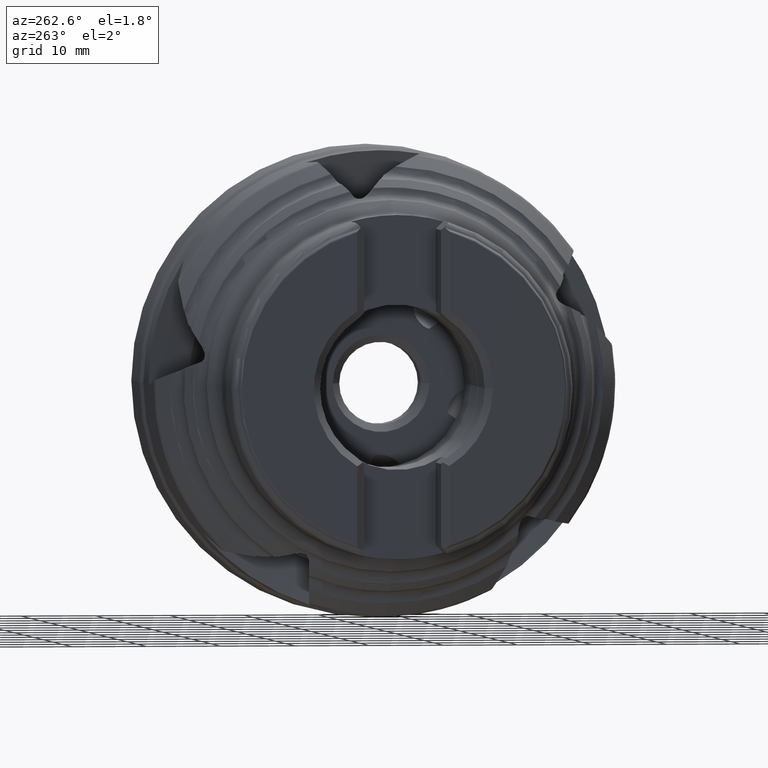
[diagram: clean part render]
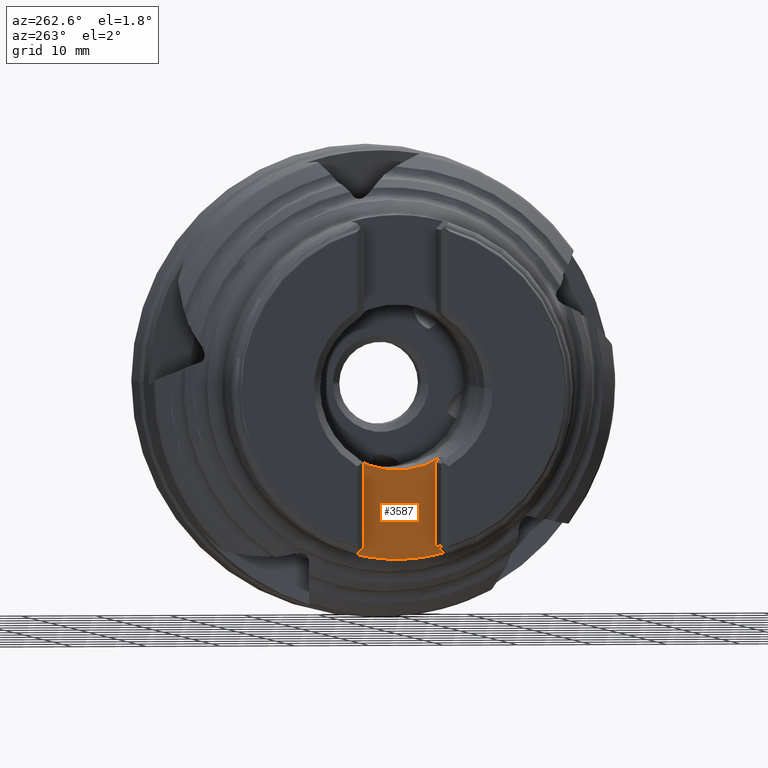
[diagram: same view with one face highlighted and labeled with its STEP entity id]
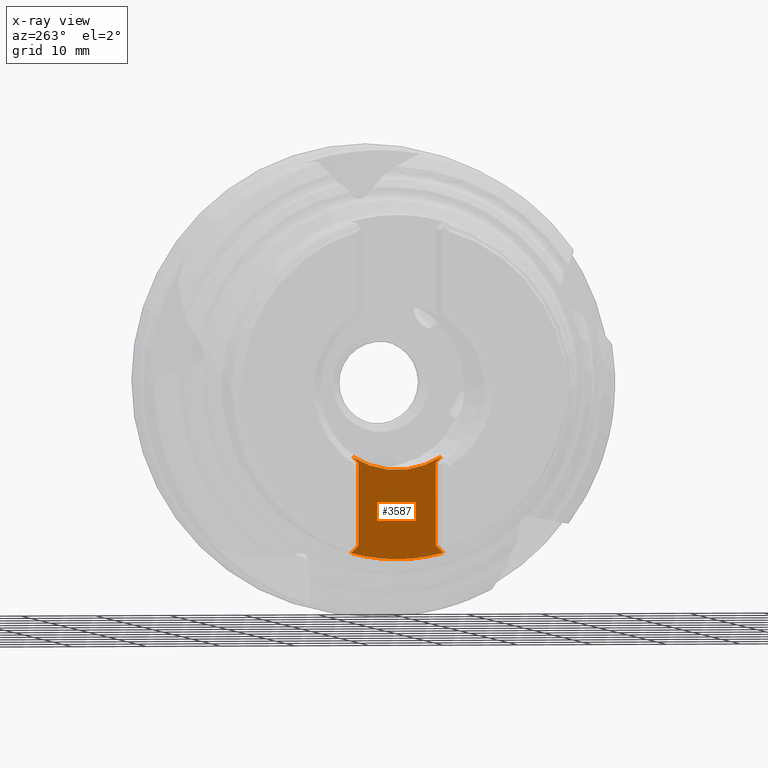
[diagram: x-ray of the same camera — body ghosted, the highlighted face saturated]
A machine part, auxiliary view. The second image highlights one B-rep face of the part: STEP entity #3587.
The next image is the same camera in x-ray: the body ghosted, the highlighted face saturated — about 0% of this face is hidden behind the body in this view.
In plain terms, the highlighted planar face has unit normal (-1, 0, 0).
Its self-contained STEP definition (entity closure, byte-faithful):
#88 = CARTESIAN_POINT ( 'NONE',  ( -31.89999999999995600, 5.199999999999996600, -21.13735931288071500 ) ) ;
#93 = CARTESIAN_POINT ( 'NONE',  ( -31.89999999999995600, -5.199999999999995700, -10.10264068711928900 ) ) ;
#1169 = EDGE_CURVE ( 'NONE', #1444, #1460, #5651, .T. ) ;
#1180 = EDGE_CURVE ( 'NONE', #1462, #1471, #5663, .T. ) ;
#1444 = VERTEX_POINT ( 'NONE', #6816 ) ;
#1460 = VERTEX_POINT ( 'NONE', #6832 ) ;
#1462 = VERTEX_POINT ( 'NONE', #6834 ) ;
#1471 = VERTEX_POINT ( 'NONE', #6843 ) ;
#2807 = EDGE_CURVE ( 'NONE', #2936, #1462, #9068, .T. ) ;
#2936 = VERTEX_POINT ( 'NONE', #9865 ) ;
#2954 = VERTEX_POINT ( 'NONE', #9881 ) ;
#2960 = VERTEX_POINT ( 'NONE', #9887 ) ;
#3004 = EDGE_LOOP ( 'NONE', ( #3250, #3251, #3252, #3253, #3254, #3255, #3256, #3257, #3258 ) ) ;
#3250 = ORIENTED_EDGE ( 'NONE', *, *, #3621, .T. ) ;
#3251 = ORIENTED_EDGE ( 'NONE', *, *, #3616, .T. ) ;
#3252 = ORIENTED_EDGE ( 'NONE', *, *, #3620, .T. ) ;
#3253 = ORIENTED_EDGE ( 'NONE', *, *, #1169, .T. ) ;
#3254 = ORIENTED_EDGE ( 'NONE', *, *, #3618, .T. ) ;
#3255 = ORIENTED_EDGE ( 'NONE', *, *, #3612, .T. ) ;
#3256 = ORIENTED_EDGE ( 'NONE', *, *, #3622, .T. ) ;
#3257 = ORIENTED_EDGE ( 'NONE', *, *, #1180, .F. ) ;
#3258 = ORIENTED_EDGE ( 'NONE', *, *, #2807, .F. ) ;
#3587 = ADVANCED_FACE ( 'NONE', ( #10074 ), #10068, .T. ) ;
#3612 = EDGE_CURVE ( 'NONE', #2960, #3660, #10178, .T. ) ;
#3616 = EDGE_CURVE ( 'NONE', #2954, #3663, #10170, .T. ) ;
#3618 = EDGE_CURVE ( 'NONE', #1460, #2960, #10182, .T. ) ;
#3620 = EDGE_CURVE ( 'NONE', #3663, #1444, #10200, .T. ) ;
#3621 = EDGE_CURVE ( 'NONE', #2936, #2954, #10203, .T. ) ;
#3622 = EDGE_CURVE ( 'NONE', #3660, #1471, #10206, .T. ) ;
#3660 = VERTEX_POINT ( 'NONE', #88 ) ;
#3663 = VERTEX_POINT ( 'NONE', #93 ) ;
#5651 = CIRCLE ( 'NONE', #5653, 11.07500000000000100 ) ;
#5653 = AXIS2_PLACEMENT_3D ( 'NONE', #6086, #6087, #6088 ) ;
#5663 = CIRCLE ( 'NONE', #5667, 23.00000000000000700 ) ;
#5667 = AXIS2_PLACEMENT_3D ( 'NONE', #6121, #6122, #6123 ) ;
#6086 = CARTESIAN_POINT ( 'NONE',  ( -31.89999999999995600, -3.906494268693378200E-015, 0.0000000000000000000 ) ) ;
#6087 = DIRECTION ( 'NONE',  ( 1.000000000000000000, -0.0000000000000000000, -0.0000000000000000000 ) ) ;
#6088 = DIRECTION ( 'NONE',  ( 0.0000000000000000000, 1.776356839400250500E-015, 1.000000000000000000 ) ) ;
#6121 = CARTESIAN_POINT ( 'NONE',  ( -31.89999999999995600, 0.0000000000000000000, 0.0000000000000000000 ) ) ;
#6122 = DIRECTION ( 'NONE',  ( 1.000000000000000000, -0.0000000000000000000, -0.0000000000000000000 ) ) ;
#6123 = DIRECTION ( 'NONE',  ( 0.0000000000000000000, 0.0000000000000000000, 1.000000000000000000 ) ) ;
#6816 = CARTESIAN_POINT ( 'NONE',  ( -31.89999999999995600, -5.982455609607132600, -9.320185077512155300 ) ) ;
#6832 = CARTESIAN_POINT ( 'NONE',  ( -31.89999999999995600, 5.982455609607149500, -9.320185077512137500 ) ) ;
#6834 = CARTESIAN_POINT ( 'NONE',  ( -31.89999999999995600, 0.0000000000000000000, -23.00000000000000700 ) ) ;
#6843 = CARTESIAN_POINT ( 'NONE',  ( -31.89999999999995600, 6.208772319603631300, -22.14613163248435200 ) ) ;
#9068 = CIRCLE ( 'NONE', #9070, 23.00000000000000700 ) ;
#9070 = AXIS2_PLACEMENT_3D ( 'NONE', #9580, #9581, #9582 ) ;
#9580 = CARTESIAN_POINT ( 'NONE',  ( -31.89999999999995600, 0.0000000000000000000, 0.0000000000000000000 ) ) ;
#9581 = DIRECTION ( 'NONE',  ( 1.000000000000000000, -0.0000000000000000000, -0.0000000000000000000 ) ) ;
#9582 = DIRECTION ( 'NONE',  ( 0.0000000000000000000, 5.329070518200750600E-015, 1.000000000000000000 ) ) ;
#9865 = CARTESIAN_POINT ( 'NONE',  ( -31.89999999999995600, -6.208772319603631300, -22.14613163248435200 ) ) ;
#9881 = CARTESIAN_POINT ( 'NONE',  ( -31.89999999999995600, -5.199999999999994800, -21.13735931288071500 ) ) ;
#9887 = CARTESIAN_POINT ( 'NONE',  ( -31.89999999999995600, 5.199999999999997500, -10.10264068711928900 ) ) ;
#10068 = PLANE ( 'NONE',  #10346 ) ;
#10070 = CARTESIAN_POINT ( 'NONE',  ( -31.89999999999995600, 5.199999999999997500, -6.996292112793894600 ) ) ;
#10074 = FACE_OUTER_BOUND ( 'NONE', #3004, .T. ) ;
#10076 = DIRECTION ( 'NONE',  ( -1.000000000000000000, 0.0000000000000000000, 0.0000000000000000000 ) ) ;
#10077 = DIRECTION ( 'NONE',  ( 0.0000000000000000000, 0.0000000000000000000, 1.000000000000000000 ) ) ;
#10170 = LINE ( 'NONE', #10190, #10370 ) ;
#10178 = LINE ( 'NONE', #10179, #10368 ) ;
#10179 = CARTESIAN_POINT ( 'NONE',  ( -31.89999999999995600, 5.199999999999996600, -21.13735931288071500 ) ) ;
#10180 = DIRECTION ( 'NONE',  ( -0.0000000000000000000, -7.860297733043039600E-017, -1.000000000000000000 ) ) ;
#10182 = LINE ( 'NONE', #10195, #10372 ) ;
#10190 = CARTESIAN_POINT ( 'NONE',  ( -31.89999999999995600, -5.199999999999994800, -21.13735931288071500 ) ) ;
#10191 = DIRECTION ( 'NONE',  ( 0.0000000000000000000, -7.860297733043039600E-017, 1.000000000000000000 ) ) ;
#10195 = CARTESIAN_POINT ( 'NONE',  ( -31.89999999999995600, 5.199999999999997500, -10.10264068711928900 ) ) ;
#10196 = DIRECTION ( 'NONE',  ( -0.0000000000000000000, -0.7071067811865476800, -0.7071067811865474600 ) ) ;
#10200 = LINE ( 'NONE', #10201, #10375 ) ;
#10201 = CARTESIAN_POINT ( 'NONE',  ( -31.89999999999995600, -5.199999999999995700, -10.10264068711928900 ) ) ;
#10202 = DIRECTION ( 'NONE',  ( 0.0000000000000000000, -0.7071067811865476800, 0.7071067811865474600 ) ) ;
#10203 = LINE ( 'NONE', #10204, #10376 ) ;
#10204 = CARTESIAN_POINT ( 'NONE',  ( -31.89999999999995600, -8.306348574325385300, -24.24370788720610600 ) ) ;
#10205 = DIRECTION ( 'NONE',  ( 0.0000000000000000000, 0.7071067811865474600, 0.7071067811865475700 ) ) ;
#10206 = LINE ( 'NONE', #10207, #10377 ) ;
#10207 = CARTESIAN_POINT ( 'NONE',  ( -31.89999999999995600, 8.306348574325385300, -24.24370788720610600 ) ) ;
#10208 = DIRECTION ( 'NONE',  ( -0.0000000000000000000, 0.7071067811865474600, -0.7071067811865475700 ) ) ;
#10346 = AXIS2_PLACEMENT_3D ( 'NONE', #10070, #10076, #10077 ) ;
#10368 = VECTOR ( 'NONE', #10180, 1000.000000000000000 ) ;
#10370 = VECTOR ( 'NONE', #10191, 1000.000000000000000 ) ;
#10372 = VECTOR ( 'NONE', #10196, 1000.000000000000000 ) ;
#10375 = VECTOR ( 'NONE', #10202, 1000.000000000000000 ) ;
#10376 = VECTOR ( 'NONE', #10205, 1000.000000000000000 ) ;
#10377 = VECTOR ( 'NONE', #10208, 1000.000000000000000 ) ;